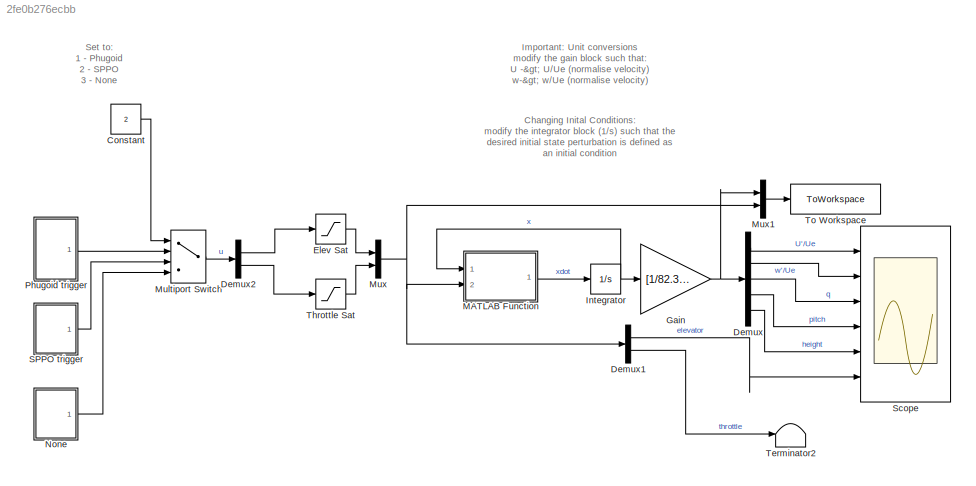
MODEL slx_2fe0b276ecbb
KIND model
CONFIG AbsTol = auto
CONFIG EnableMultiTasking = off
CONFIG FixedStep = auto
CONFIG MaxStep = auto
CONFIG MinStep = auto
CONFIG RelTol = 1e-3
CONFIG SampleTimeConstraint = Unconstrained
CONFIG SolverName = VariableStepAuto
CONFIG StartTime = 0.0
CONFIG StopTime = 15
BLOCK [Constant] Constant
  Value = 2
BLOCK [Demux] Demux
  Outputs = 5
  Ports = [1, 5]
BLOCK [Demux] Demux1
  Outputs = 2
  Ports = [1, 2]
BLOCK [Demux] Demux2
  Outputs = 2
  Ports = [1, 2]
BLOCK [Saturate] Elev Sat
  LowerLimit = -2
  UpperLimit = 1
BLOCK [Gain] Gain
  Gain = [1/82.3;1/82.3;1;1;1]
BLOCK [Integrator] Integrator
  InitialCondition = [0;0;0;0;0]
  Ports = [1, 1]
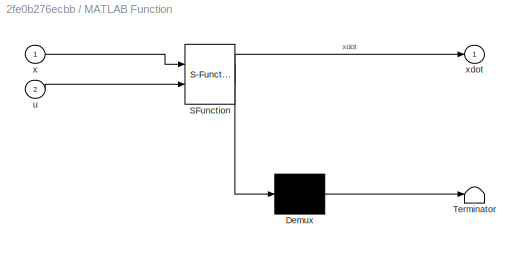
BLOCK [SubSystem] MATLAB Function
  ErrorFcn = Stateflow.Translate.translate
  PermitHierarchicalResolution = ExplicitOnly
  Ports = [2, 1]
  RequestExecContextInheritance = off
  SFBlockType = MATLAB Function
  TreatAsAtomicUnit = on
BLOCK [Demux] MATLAB Function/ Demux 
  Outputs = 1
  Ports = [1, 1]
BLOCK [S-Function] MATLAB Function/ SFunction 
  EnableBusSupport = off
  FunctionName = sf_sfun
  PortCounts = [2 2]
  Ports = [2, 2]
  SFcnIsStateOwnerBlock = off
  SFunctionDeploymentMode = off
  Tag = Stateflow S-Function 2
BLOCK [Terminator] MATLAB Function/ Terminator 
BLOCK [Inport] MATLAB Function/u
  Port = 2
BLOCK [Inport] MATLAB Function/x
BLOCK [Outport] MATLAB Function/xdot
BLOCK [MultiPortSwitch] Multiport Switch
  InputSameDT = off
  Ports = [4, 1]
  SaturateOnIntegerOverflow = off
BLOCK [Mux] Mux
  DisplayOption = bar
  Inputs = 2
  Ports = [2, 1]
BLOCK [Mux] Mux1
  DisplayOption = bar
  Inputs = 2
  Ports = [2, 1]
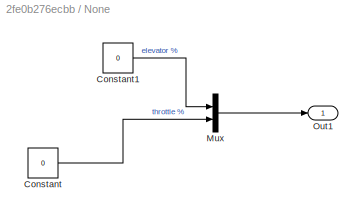
BLOCK [SubSystem] None
  Ports = [0, 1]
  RequestExecContextInheritance = off
BLOCK [Constant] None/Constant
  Value = 0
BLOCK [Constant] None/Constant1
  Value = 0
BLOCK [Mux] None/Mux
  DisplayOption = bar
  Inputs = 2
  Ports = [2, 1]
BLOCK [Outport] None/Out1
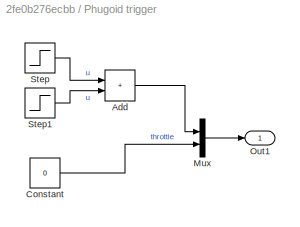
BLOCK [SubSystem] Phugoid trigger
  Ports = [0, 1]
  RequestExecContextInheritance = off
BLOCK [Sum] Phugoid trigger/Add
  IconShape = rectangular
  Ports = [2, 1]
BLOCK [Constant] Phugoid trigger/Constant
  Value = 0
BLOCK [Mux] Phugoid trigger/Mux
  DisplayOption = bar
  Inputs = 2
  Ports = [2, 1]
BLOCK [Outport] Phugoid trigger/Out1
BLOCK [Step] Phugoid trigger/Step
  After = 0.7639
  SampleTime = 0
  Time = 0
BLOCK [Step] Phugoid trigger/Step1
  After = -0.7639
  SampleTime = 0
  Time = 0.1
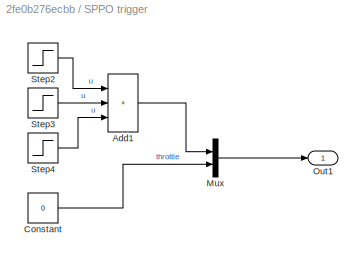
BLOCK [SubSystem] SPPO trigger
  Ports = [0, 1]
  RequestExecContextInheritance = off
BLOCK [Sum] SPPO trigger/Add1
  IconShape = rectangular
  Inputs = +++
  Ports = [3, 1]
BLOCK [Constant] SPPO trigger/Constant
  Value = 0
BLOCK [Mux] SPPO trigger/Mux
  DisplayOption = bar
  Inputs = 2
  Ports = [2, 1]
BLOCK [Outport] SPPO trigger/Out1
BLOCK [Step] SPPO trigger/Step2
  SampleTime = 0
  Time = 0
BLOCK [Step] SPPO trigger/Step3
  After = -2
  SampleTime = 0
  Time = 0.1
BLOCK [Step] SPPO trigger/Step4
  SampleTime = 0
  Time = 0.2
BLOCK [Scope] Scope
  Floating = off
  NumInputPorts = 6
  Ports = [6]
  ScopeSpecificationString = Simulink.scopes.TimeScopeBlockCfg('CurrentConfiguration', extmgr.ConfigurationSet(extmgr.Configuration('Core','General UI',true),extmgr.Configuration('Core','Source UI',true),extmgr.Configuration('Sources','WiredSimulink',true),extmgr.Configuration('Visuals','Time Domain',true,'SerializedDisplays',{struct('MinYLimReal','-0.11069','MaxYLimReal','0.01236','YLabelReal','','MinYLimMag','0.00000','MaxY...<+4935ch>
BLOCK [Terminator] Terminator2
BLOCK [Saturate] Throttle Sat
  LowerLimit = 0
  UpperLimit = 1
BLOCK [ToWorkspace] To Workspace
  FixptAsFi = on
  MaxDataPoints = inf
  Ports = [1]
  SampleTime = 0.01
  SaveFormat = Timeseries
  VariableName = long
ANNOTATION (root): Important: Unit conversions modify the gain block such that: U -> U/Ue (normalise velocity) w-> w/Ue (normalise velocity)
ANNOTATION (root): Changing Inital Conditions: modify the integrator block (1/s) such that the desired initial state perturbation is defined as an initial condition
ANNOTATION (root): Set to: 1 - Phugoid 2 - SPPO 3 - None
LINE Constant:1 -> Multiport Switch:1
LINE Demux1:1 -> Scope:6
LINE Demux1:2 -> Terminator2:1
LINE Demux2:1 -> Elev Sat:1
LINE Demux2:2 -> Throttle Sat:1
LINE Demux:1 -> Scope:1
LINE Demux:2 -> Scope:2
LINE Demux:3 -> Scope:3
LINE Demux:4 -> Scope:4
LINE Demux:5 -> Scope:5
LINE Elev Sat:1 -> Mux:1
NET Gain:1 -> Demux:1, Mux1:1
NET Integrator:1 -> Gain:1, MATLAB Function:1
LINE MATLAB Function:1 -> Integrator:1
LINE Multiport Switch:1 -> Demux2:1
LINE Mux1:1 -> To Workspace:1
NET Mux:1 -> Demux1:1, MATLAB Function:2, Mux1:2
LINE None/Constant1:1 -> None/Mux:1
LINE None/Constant:1 -> None/Mux:2
LINE None/Mux:1 -> None/Out1:1
LINE None:1 -> Multiport Switch:4
LINE Phugoid trigger/Add:1 -> Phugoid trigger/Mux:1
LINE Phugoid trigger/Constant:1 -> Phugoid trigger/Mux:2
LINE Phugoid trigger/Mux:1 -> Phugoid trigger/Out1:1
LINE Phugoid trigger/Step1:1 -> Phugoid trigger/Add:2
LINE Phugoid trigger/Step:1 -> Phugoid trigger/Add:1
LINE Phugoid trigger:1 -> Multiport Switch:2
LINE SPPO trigger/Add1:1 -> SPPO trigger/Mux:1
LINE SPPO trigger/Constant:1 -> SPPO trigger/Mux:2
LINE SPPO trigger/Mux:1 -> SPPO trigger/Out1:1
LINE SPPO trigger/Step2:1 -> SPPO trigger/Add1:1
LINE SPPO trigger/Step3:1 -> SPPO trigger/Add1:2
LINE SPPO trigger/Step4:1 -> SPPO trigger/Add1:3
LINE SPPO trigger:1 -> Multiport Switch:3
LINE Throttle Sat:1 -> Mux:2
note: NET lines group one-source signal fan-out (src -> all destinations, sorted); 1:1 wires keep LINE
CHART MATLAB Function states=1 transitions=1
  STATE_LABEL 'eML_blk_kernel()'
  STATE_LABEL 'SCRIPT:\nfunction xdot = LinearEoM(x,u)\n%Input: - x:Longitudinal state vactor (5x1 vector)\n%         x(1)- u      m/s\n%         x(2)- w      m/s\n%         x(3)- q      rad/s\n%         x(4)- theta  deg\n%         x(5)- height m\n%       - u: longitudinal control vector (2x1 vector)\n%         u(1)- elevator deflection as percentage of max +ve defrlaction\n%               -2<u(1)<1     \n%         u(2)- T...<+1023ch>'
CHART  states=0 transitions=0
